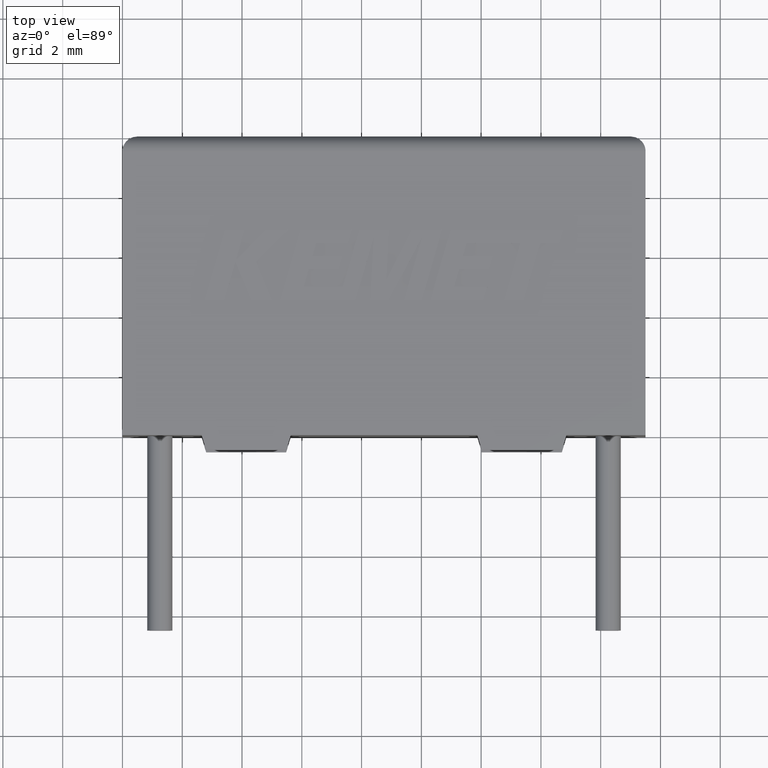
[diagram: clean part render]
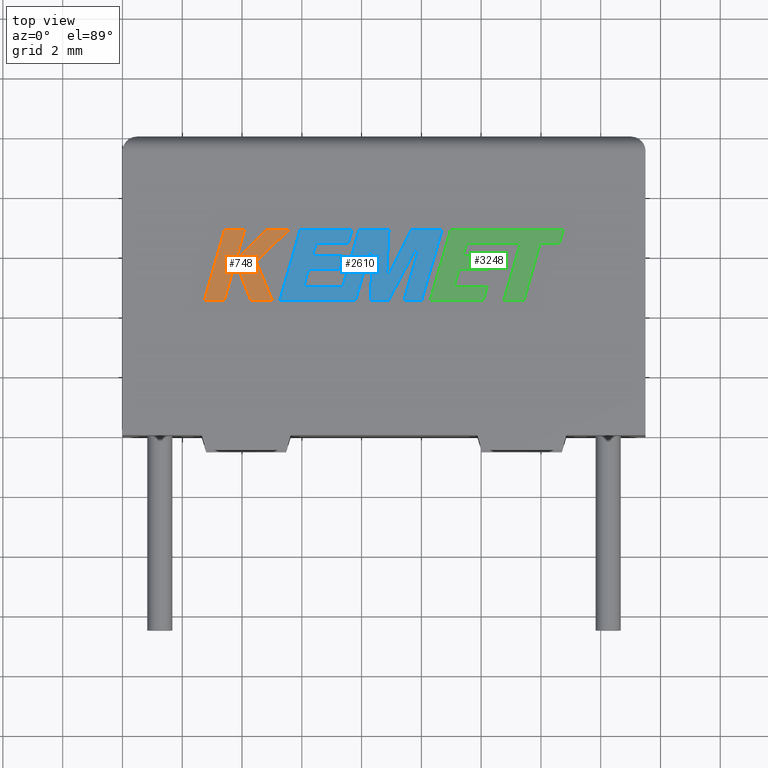
[diagram: same view with three faces highlighted in distinct colors, each labeled with its STEP entity id]
A machine part, top view with three faces highlighted in distinct colors.
Their STEP definitions:

[orange] entity #748 — the highlighted planar face has unit normal (0, 0, -1).
#26 = DIRECTION ( 'NONE',  ( -0.7059037656364501900, -0.7083077534943970100, -0.0000000000000000000 ) ) ;
#35 = CARTESIAN_POINT ( 'NONE',  ( 3.799861121717425000, 5.872117262448632000, 4.504999999999999900 ) ) ;
#83 = LINE ( 'NONE', #2499, #2196 ) ;
#191 = ORIENTED_EDGE ( 'NONE', *, *, #380, .T. ) ;
#361 = EDGE_CURVE ( 'NONE', #2717, #2642, #83, .T. ) ;
#374 = VERTEX_POINT ( 'NONE', #950 ) ;
#380 = EDGE_CURVE ( 'NONE', #374, #1116, #1843, .T. ) ;
#415 = EDGE_CURVE ( 'NONE', #831, #1919, #2115, .T. ) ;
#423 = ORIENTED_EDGE ( 'NONE', *, *, #2266, .T. ) ;
#444 = DIRECTION ( 'NONE',  ( -0.2762033010252004100, -0.9610992334315862100, -0.0000000000000000000 ) ) ;
#516 = CARTESIAN_POINT ( 'NONE',  ( 5.573594794093049000, 6.875176084403357800, 4.504999999999999900 ) ) ;
#522 = VERTEX_POINT ( 'NONE', #1143 ) ;
#542 = ORIENTED_EDGE ( 'NONE', *, *, #2493, .T. ) ;
#613 = LINE ( 'NONE', #2224, #1131 ) ;
#687 = LINE ( 'NONE', #2173, #2333 ) ;
#733 = DIRECTION ( 'NONE',  ( 0.3725077383644744800, -0.9280290862136727500, 0.0000000000000000000 ) ) ;
#744 = EDGE_LOOP ( 'NONE', ( #1003, #1384, #1777, #2006, #1646, #2834, #1976, #423, #542, #191, #2409 ) ) ;
#748 = ADVANCED_FACE ( 'NONE', ( #2150 ), #2434, .F. ) ;
#831 = VERTEX_POINT ( 'NONE', #2471 ) ;
#834 = DIRECTION ( 'NONE',  ( 1.000000000000000000, -1.089306025555442500E-013, 0.0000000000000000000 ) ) ;
#903 = VERTEX_POINT ( 'NONE', #1214 ) ;
#931 = LINE ( 'NONE', #2487, #3048 ) ;
#950 = CARTESIAN_POINT ( 'NONE',  ( 3.799861121717425000, 5.872117262448632000, 4.504999999999999900 ) ) ;
#994 = EDGE_CURVE ( 'NONE', #3115, #1194, #1173, .T. ) ;
#1003 = ORIENTED_EDGE ( 'NONE', *, *, #2249, .T. ) ;
#1116 = VERTEX_POINT ( 'NONE', #2362 ) ;
#1131 = VECTOR ( 'NONE', #2203, 1000.000000000000000 ) ;
#1143 = CARTESIAN_POINT ( 'NONE',  ( 4.799515574290495600, 6.875176084403357800, 4.504999999999999900 ) ) ;
#1173 = LINE ( 'NONE', #2317, #2068 ) ;
#1194 = VERTEX_POINT ( 'NONE', #3149 ) ;
#1214 = CARTESIAN_POINT ( 'NONE',  ( 3.417641984455954700, 6.875176084403357800, 4.504999999999999900 ) ) ;
#1363 = LINE ( 'NONE', #2186, #2470 ) ;
#1384 = ORIENTED_EDGE ( 'NONE', *, *, #994, .T. ) ;
#1442 = VECTOR ( 'NONE', #1601, 1000.000000000000200 ) ;
#1453 = DIRECTION ( 'NONE',  ( 0.0000000000000000000, 0.0000000000000000000, -1.000000000000000000 ) ) ;
#1462 = CARTESIAN_POINT ( 'NONE',  ( 4.289232068683158900, 4.522999999999926900, 4.504999999999999900 ) ) ;
#1601 = DIRECTION ( 'NONE',  ( -0.3829140317376951200, 0.9237839814038687500, 0.0000000000000000000 ) ) ;
#1612 = EDGE_CURVE ( 'NONE', #2328, #2717, #1363, .T. ) ;
#1638 = EDGE_CURVE ( 'NONE', #2642, #831, #1868, .T. ) ;
#1646 = ORIENTED_EDGE ( 'NONE', *, *, #361, .T. ) ;
#1648 = VECTOR ( 'NONE', #1711, 1000.000000000000100 ) ;
#1711 = DIRECTION ( 'NONE',  ( 0.2755520632520599400, 0.9612861490927312500, 0.0000000000000000000 ) ) ;
#1777 = ORIENTED_EDGE ( 'NONE', *, *, #2632, .T. ) ;
#1784 = VECTOR ( 'NONE', #2797, 1000.000000000000000 ) ;
#1798 = CARTESIAN_POINT ( 'NONE',  ( 5.573594794093049000, 6.875176084403357800, 4.504999999999999900 ) ) ;
#1843 = LINE ( 'NONE', #3235, #1648 ) ;
#1868 = LINE ( 'NONE', #2336, #1442 ) ;
#1919 = VERTEX_POINT ( 'NONE', #1798 ) ;
#1976 = ORIENTED_EDGE ( 'NONE', *, *, #415, .T. ) ;
#2006 = ORIENTED_EDGE ( 'NONE', *, *, #1612, .T. ) ;
#2068 = VECTOR ( 'NONE', #834, 1000.000000000000000 ) ;
#2115 = LINE ( 'NONE', #516, #2718 ) ;
#2150 = FACE_OUTER_BOUND ( 'NONE', #744, .T. ) ;
#2160 = DIRECTION ( 'NONE',  ( 0.2755265765475173300, 0.9612934544747535600, 0.0000000000000000000 ) ) ;
#2173 = CARTESIAN_POINT ( 'NONE',  ( 3.776581240866744100, 5.800167774752717200, 4.504999999999999900 ) ) ;
#2186 = CARTESIAN_POINT ( 'NONE',  ( 4.289232068683158900, 4.522999999999926900, 4.504999999999999900 ) ) ;
#2196 = VECTOR ( 'NONE', #2746, 1000.000000000000000 ) ;
#2203 = DIRECTION ( 'NONE',  ( -1.000000000000000000, -0.0000000000000000000, -0.0000000000000000000 ) ) ;
#2224 = CARTESIAN_POINT ( 'NONE',  ( 4.799515574290495600, 6.875176084403357800, 4.504999999999999900 ) ) ;
#2249 = EDGE_CURVE ( 'NONE', #903, #3115, #931, .T. ) ;
#2266 = EDGE_CURVE ( 'NONE', #1919, #522, #613, .T. ) ;
#2317 = CARTESIAN_POINT ( 'NONE',  ( 3.410518554164356800, 4.522999999999926900, 4.504999999999999900 ) ) ;
#2328 = VERTEX_POINT ( 'NONE', #2962 ) ;
#2333 = VECTOR ( 'NONE', #2160, 1000.000000000000100 ) ;
#2336 = CARTESIAN_POINT ( 'NONE',  ( 4.475528316718973400, 5.800167774752745600, 4.504999999999999900 ) ) ;
#2362 = CARTESIAN_POINT ( 'NONE',  ( 4.087387295077634900, 6.875176084403357800, 4.504999999999999900 ) ) ;
#2409 = ORIENTED_EDGE ( 'NONE', *, *, #2423, .T. ) ;
#2423 = EDGE_CURVE ( 'NONE', #1116, #903, #2970, .T. ) ;
#2434 = PLANE ( 'NONE',  #2685 ) ;
#2470 = VECTOR ( 'NONE', #733, 999.9999999999998900 ) ;
#2471 = CARTESIAN_POINT ( 'NONE',  ( 4.475528316718973400, 5.800167774752745600, 4.504999999999999900 ) ) ;
#2487 = CARTESIAN_POINT ( 'NONE',  ( 2.741667249999999400, 4.522999999999999700, 4.504999999999999900 ) ) ;
#2493 = EDGE_CURVE ( 'NONE', #522, #374, #3169, .T. ) ;
#2499 = CARTESIAN_POINT ( 'NONE',  ( 5.004922062097479700, 4.522999999999926900, 4.504999999999999900 ) ) ;
#2508 = CARTESIAN_POINT ( 'NONE',  ( 3.417641984455954700, 6.875176084403357800, 4.504999999999999900 ) ) ;
#2632 = EDGE_CURVE ( 'NONE', #1194, #2328, #687, .T. ) ;
#2642 = VERTEX_POINT ( 'NONE', #2942 ) ;
#2659 = CARTESIAN_POINT ( 'NONE',  ( 2.741667249999999400, 4.522999999999999700, 4.504999999999999900 ) ) ;
#2685 = AXIS2_PLACEMENT_3D ( 'NONE', #3193, #1453, #3211 ) ;
#2717 = VERTEX_POINT ( 'NONE', #1462 ) ;
#2718 = VECTOR ( 'NONE', #2784, 1000.000000000000000 ) ;
#2746 = DIRECTION ( 'NONE',  ( 1.000000000000000000, 0.0000000000000000000, 0.0000000000000000000 ) ) ;
#2784 = DIRECTION ( 'NONE',  ( 0.7145695586381817200, 0.6995643972270416700, 0.0000000000000000000 ) ) ;
#2797 = DIRECTION ( 'NONE',  ( -1.000000000000000000, -0.0000000000000000000, -0.0000000000000000000 ) ) ;
#2834 = ORIENTED_EDGE ( 'NONE', *, *, #1638, .T. ) ;
#2892 = VECTOR ( 'NONE', #26, 1000.000000000000100 ) ;
#2942 = CARTESIAN_POINT ( 'NONE',  ( 5.004922062097479700, 4.522999999999926900, 4.504999999999999900 ) ) ;
#2962 = CARTESIAN_POINT ( 'NONE',  ( 3.776581240866744100, 5.800167774752717200, 4.504999999999999900 ) ) ;
#2970 = LINE ( 'NONE', #2508, #1784 ) ;
#3048 = VECTOR ( 'NONE', #444, 1000.000000000000100 ) ;
#3115 = VERTEX_POINT ( 'NONE', #2659 ) ;
#3149 = CARTESIAN_POINT ( 'NONE',  ( 3.410518554164356800, 4.522999999999926900, 4.504999999999999900 ) ) ;
#3169 = LINE ( 'NONE', #35, #2892 ) ;
#3193 = CARTESIAN_POINT ( 'NONE',  ( 0.07943521965645371200, -8.529055050973587600, 4.504999999999999900 ) ) ;
#3211 = DIRECTION ( 'NONE',  ( -1.000000000000000000, 0.0000000000000000000, 0.0000000000000000000 ) ) ;
#3235 = CARTESIAN_POINT ( 'NONE',  ( 4.087387295077634900, 6.875176084403357800, 4.504999999999999900 ) ) ;

[blue] entity #2610 — the highlighted planar face has unit normal (0, 0, -1).
#16 = VERTEX_POINT ( 'NONE', #577 ) ;
#24 = EDGE_CURVE ( 'NONE', #2454, #591, #1383, .T. ) ;
#29 = CARTESIAN_POINT ( 'NONE',  ( 5.267348260593836400, 4.522999999999925100, 4.504999999999999900 ) ) ;
#46 = LINE ( 'NONE', #1910, #3069 ) ;
#87 = LINE ( 'NONE', #1274, #3073 ) ;
#91 = EDGE_CURVE ( 'NONE', #2383, #2452, #87, .T. ) ;
#110 = EDGE_CURVE ( 'NONE', #2282, #172, #1734, .T. ) ;
#124 = CARTESIAN_POINT ( 'NONE',  ( 10.69286888281140300, 6.875176084403357800, 4.504999999999999900 ) ) ;
#170 = EDGE_CURVE ( 'NONE', #271, #2383, #873, .T. ) ;
#172 = VERTEX_POINT ( 'NONE', #3097 ) ;
#210 = VERTEX_POINT ( 'NONE', #382 ) ;
#213 = CARTESIAN_POINT ( 'NONE',  ( 7.681918713741795900, 6.875176084403357800, 4.504999999999999900 ) ) ;
#215 = EDGE_CURVE ( 'NONE', #16, #1849, #1380, .T. ) ;
#239 = ORIENTED_EDGE ( 'NONE', *, *, #486, .T. ) ;
#246 = CARTESIAN_POINT ( 'NONE',  ( 7.801364874262980600, 4.522999999999926900, 4.504999999999999900 ) ) ;
#257 = DIRECTION ( 'NONE',  ( 0.2759782365590801000, 0.9611638845408936300, 0.0000000000000000000 ) ) ;
#264 = DIRECTION ( 'NONE',  ( 0.2732148821745925000, 0.9619530280415585800, 0.0000000000000000000 ) ) ;
#271 = VERTEX_POINT ( 'NONE', #2683 ) ;
#281 = VERTEX_POINT ( 'NONE', #1144 ) ;
#290 = EDGE_CURVE ( 'NONE', #843, #2908, #1065, .T. ) ;
#301 = CARTESIAN_POINT ( 'NONE',  ( 6.231714566706590300, 5.555110394430525600, 4.504999999999999900 ) ) ;
#310 = EDGE_CURVE ( 'NONE', #1375, #2454, #46, .T. ) ;
#328 = DIRECTION ( 'NONE',  ( -1.000000000000000000, 0.0000000000000000000, 0.0000000000000000000 ) ) ;
#333 = VECTOR ( 'NONE', #264, 1000.000000000000100 ) ;
#343 = LINE ( 'NONE', #988, #2705 ) ;
#347 = CARTESIAN_POINT ( 'NONE',  ( 10.02312357218991500, 6.627164912981995400, 4.504999999999999900 ) ) ;
#370 = ORIENTED_EDGE ( 'NONE', *, *, #1403, .T. ) ;
#382 = CARTESIAN_POINT ( 'NONE',  ( 6.355773792693551800, 5.989947064589872000, 4.504999999999999900 ) ) ;
#424 = VECTOR ( 'NONE', #2631, 1000.000000000000000 ) ;
#425 = LINE ( 'NONE', #1093, #2346 ) ;
#468 = EDGE_CURVE ( 'NONE', #281, #210, #1109, .T. ) ;
#474 = ORIENTED_EDGE ( 'NONE', *, *, #1663, .T. ) ;
#486 = EDGE_CURVE ( 'NONE', #1172, #2244, #2914, .T. ) ;
#543 = VECTOR ( 'NONE', #2330, 1000.000000000000200 ) ;
#556 = VERTEX_POINT ( 'NONE', #1378 ) ;
#558 = DIRECTION ( 'NONE',  ( 1.000000000000000000, 0.0000000000000000000, 0.0000000000000000000 ) ) ;
#577 = CARTESIAN_POINT ( 'NONE',  ( 9.661220449992331500, 6.875176084403357800, 4.504999999999999900 ) ) ;
#591 = VERTEX_POINT ( 'NONE', #124 ) ;
#610 = EDGE_CURVE ( 'NONE', #1056, #2482, #2833, .T. ) ;
#630 = CARTESIAN_POINT ( 'NONE',  ( 7.916534120704699100, 6.875176084403357800, 4.504999999999999900 ) ) ;
#656 = AXIS2_PLACEMENT_3D ( 'NONE', #2930, #2182, #2406 ) ;
#664 = LINE ( 'NONE', #890, #424 ) ;
#707 = VECTOR ( 'NONE', #328, 1000.000000000000000 ) ;
#742 = ORIENTED_EDGE ( 'NONE', *, *, #110, .T. ) ;
#782 = CARTESIAN_POINT ( 'NONE',  ( 10.02312357218991500, 6.627164912981995400, 4.504999999999999900 ) ) ;
#784 = DIRECTION ( 'NONE',  ( -1.000000000000000000, 0.0000000000000000000, 0.0000000000000000000 ) ) ;
#843 = VERTEX_POINT ( 'NONE', #1991 ) ;
#855 = DIRECTION ( 'NONE',  ( -0.4443210308329059200, -0.8958676361827030400, 0.0000000000000000000 ) ) ;
#873 = LINE ( 'NONE', #2890, #1609 ) ;
#884 = DIRECTION ( 'NONE',  ( -0.2762517575166160700, -0.9610853065513907900, 0.0000000000000000000 ) ) ;
#890 = CARTESIAN_POINT ( 'NONE',  ( 8.918242698049985200, 6.875176084403357800, 4.504999999999999900 ) ) ;
#898 = ORIENTED_EDGE ( 'NONE', *, *, #1655, .T. ) ;
#942 = LINE ( 'NONE', #1348, #1365 ) ;
#976 = EDGE_CURVE ( 'NONE', #2958, #1375, #1996, .T. ) ;
#981 = ORIENTED_EDGE ( 'NONE', *, *, #215, .T. ) ;
#988 = CARTESIAN_POINT ( 'NONE',  ( 6.065143635469668800, 4.970502926892681500, 4.504999999999999900 ) ) ;
#1013 = CARTESIAN_POINT ( 'NONE',  ( 9.418876612286860400, 4.522999999999926900, 4.504999999999999900 ) ) ;
#1019 = LINE ( 'NONE', #2582, #3251 ) ;
#1028 = CARTESIAN_POINT ( 'NONE',  ( 10.01660091485718100, 4.522999999999926900, 4.504999999999999900 ) ) ;
#1056 = VERTEX_POINT ( 'NONE', #2302 ) ;
#1065 = LINE ( 'NONE', #3163, #1457 ) ;
#1066 = ORIENTED_EDGE ( 'NONE', *, *, #310, .T. ) ;
#1072 = ORIENTED_EDGE ( 'NONE', *, *, #91, .T. ) ;
#1079 = CARTESIAN_POINT ( 'NONE',  ( 10.01660091485718100, 4.522999999999926900, 4.504999999999999900 ) ) ;
#1093 = CARTESIAN_POINT ( 'NONE',  ( 10.69286888281140300, 6.875176084403357800, 4.504999999999999900 ) ) ;
#1103 = VECTOR ( 'NONE', #884, 1000.000000000000000 ) ;
#1109 = LINE ( 'NONE', #1589, #707 ) ;
#1144 = CARTESIAN_POINT ( 'NONE',  ( 7.365355271991178100, 5.989947064589872000, 4.504999999999999900 ) ) ;
#1161 = EDGE_CURVE ( 'NONE', #2647, #1056, #664, .T. ) ;
#1162 = DIRECTION ( 'NONE',  ( -0.2765379750249959400, -0.9610029908221278100, 0.0000000000000000000 ) ) ;
#1167 = PLANE ( 'NONE',  #656 ) ;
#1172 = VERTEX_POINT ( 'NONE', #1376 ) ;
#1181 = CARTESIAN_POINT ( 'NONE',  ( 8.918242698049985200, 6.875176084403357800, 4.504999999999999900 ) ) ;
#1196 = EDGE_CURVE ( 'NONE', #2452, #2958, #1680, .T. ) ;
#1237 = FACE_OUTER_BOUND ( 'NONE', #1422, .T. ) ;
#1251 = DIRECTION ( 'NONE',  ( 0.2793947940878287500, 0.9601763114327596100, 0.0000000000000000000 ) ) ;
#1274 = CARTESIAN_POINT ( 'NONE',  ( 8.285257363114753900, 4.522999999999926900, 4.504999999999999900 ) ) ;
#1283 = ORIENTED_EDGE ( 'NONE', *, *, #610, .T. ) ;
#1294 = EDGE_CURVE ( 'NONE', #556, #271, #2146, .T. ) ;
#1300 = VECTOR ( 'NONE', #2546, 1000.000000000000100 ) ;
#1304 = DIRECTION ( 'NONE',  ( 0.05375259206908267900, 0.9985542843760947300, 0.0000000000000000000 ) ) ;
#1323 = VERTEX_POINT ( 'NONE', #1989 ) ;
#1348 = CARTESIAN_POINT ( 'NONE',  ( 7.241153005273329100, 5.555110394430525600, 4.504999999999999900 ) ) ;
#1365 = VECTOR ( 'NONE', #3126, 1000.000000000000100 ) ;
#1367 = DIRECTION ( 'NONE',  ( -0.05596501978068205200, -0.9984327301130245800, 0.0000000000000000000 ) ) ;
#1370 = VECTOR ( 'NONE', #257, 1000.000000000000100 ) ;
#1375 = VERTEX_POINT ( 'NONE', #1013 ) ;
#1376 = CARTESIAN_POINT ( 'NONE',  ( 6.483080043273763400, 6.427451444381633300, 4.504999999999999900 ) ) ;
#1378 = CARTESIAN_POINT ( 'NONE',  ( 7.801364874262980600, 4.522999999999926900, 4.504999999999999900 ) ) ;
#1380 = LINE ( 'NONE', #1836, #1653 ) ;
#1383 = LINE ( 'NONE', #1079, #1300 ) ;
#1397 = DIRECTION ( 'NONE',  ( 0.4668459304955211400, 0.8843386665637611400, 0.0000000000000000000 ) ) ;
#1403 = EDGE_CURVE ( 'NONE', #1849, #2647, #2790, .T. ) ;
#1422 = EDGE_LOOP ( 'NONE', ( #2950, #981, #370, #1501, #1283, #3214, #1881, #742, #3078, #1934, #3157, #239, #2188, #898, #2883, #474, #2530, #2319, #1072, #2807, #1869, #1066, #2156 ) ) ;
#1426 = EDGE_CURVE ( 'NONE', #2482, #1323, #2108, .T. ) ;
#1451 = VECTOR ( 'NONE', #2567, 1000.000000000000000 ) ;
#1457 = VECTOR ( 'NONE', #1162, 1000.000000000000000 ) ;
#1501 = ORIENTED_EDGE ( 'NONE', *, *, #1161, .T. ) ;
#1531 = EDGE_CURVE ( 'NONE', #591, #16, #425, .T. ) ;
#1547 = EDGE_CURVE ( 'NONE', #172, #281, #942, .T. ) ;
#1589 = CARTESIAN_POINT ( 'NONE',  ( 7.365355271991178100, 5.989947064589872000, 4.504999999999999900 ) ) ;
#1609 = VECTOR ( 'NONE', #1367, 1000.000000000000200 ) ;
#1611 = CARTESIAN_POINT ( 'NONE',  ( 8.912326471646855100, 4.522999999999926900, 4.504999999999999900 ) ) ;
#1653 = VECTOR ( 'NONE', #855, 1000.000000000000000 ) ;
#1655 = EDGE_CURVE ( 'NONE', #2267, #843, #1677, .T. ) ;
#1663 = EDGE_CURVE ( 'NONE', #2908, #556, #1019, .T. ) ;
#1677 = LINE ( 'NONE', #2082, #1951 ) ;
#1680 = LINE ( 'NONE', #1611, #1686 ) ;
#1686 = VECTOR ( 'NONE', #1397, 1000.000000000000200 ) ;
#1734 = LINE ( 'NONE', #301, #1882 ) ;
#1786 = EDGE_CURVE ( 'NONE', #1323, #2282, #343, .T. ) ;
#1836 = CARTESIAN_POINT ( 'NONE',  ( 9.661220449992331500, 6.875176084403357800, 4.504999999999999900 ) ) ;
#1849 = VERTEX_POINT ( 'NONE', #3080 ) ;
#1869 = ORIENTED_EDGE ( 'NONE', *, *, #976, .T. ) ;
#1881 = ORIENTED_EDGE ( 'NONE', *, *, #1786, .T. ) ;
#1882 = VECTOR ( 'NONE', #558, 1000.000000000000000 ) ;
#1910 = CARTESIAN_POINT ( 'NONE',  ( 9.418876612286860400, 4.522999999999926900, 4.504999999999999900 ) ) ;
#1934 = ORIENTED_EDGE ( 'NONE', *, *, #468, .T. ) ;
#1951 = VECTOR ( 'NONE', #2863, 1000.000000000000000 ) ;
#1978 = VECTOR ( 'NONE', #1251, 1000.000000000000000 ) ;
#1989 = CARTESIAN_POINT ( 'NONE',  ( 6.065143635469668800, 4.970502926892681500, 4.504999999999999900 ) ) ;
#1991 = CARTESIAN_POINT ( 'NONE',  ( 5.944209849470560400, 6.875176084403357800, 4.504999999999999900 ) ) ;
#1996 = LINE ( 'NONE', #347, #543 ) ;
#2031 = CARTESIAN_POINT ( 'NONE',  ( 6.355773792693551800, 5.989947064589872000, 4.504999999999999900 ) ) ;
#2082 = CARTESIAN_POINT ( 'NONE',  ( 7.681918713741795900, 6.875176084403357800, 4.504999999999999900 ) ) ;
#2108 = LINE ( 'NONE', #2541, #2549 ) ;
#2146 = LINE ( 'NONE', #246, #1370 ) ;
#2156 = ORIENTED_EDGE ( 'NONE', *, *, #24, .T. ) ;
#2182 = DIRECTION ( 'NONE',  ( 0.0000000000000000000, 0.0000000000000000000, -1.000000000000000000 ) ) ;
#2188 = ORIENTED_EDGE ( 'NONE', *, *, #2885, .T. ) ;
#2244 = VERTEX_POINT ( 'NONE', #2426 ) ;
#2267 = VERTEX_POINT ( 'NONE', #213 ) ;
#2276 = CARTESIAN_POINT ( 'NONE',  ( 8.285257363114753900, 4.522999999999926900, 4.504999999999999900 ) ) ;
#2282 = VERTEX_POINT ( 'NONE', #2464 ) ;
#2302 = CARTESIAN_POINT ( 'NONE',  ( 7.916534120704699100, 6.875176084403357800, 4.504999999999999900 ) ) ;
#2312 = CARTESIAN_POINT ( 'NONE',  ( 8.827784731893460800, 5.194751267950637800, 4.504999999999999900 ) ) ;
#2319 = ORIENTED_EDGE ( 'NONE', *, *, #170, .T. ) ;
#2330 = DIRECTION ( 'NONE',  ( -0.2760118818968562100, -0.9611542233438689100, 0.0000000000000000000 ) ) ;
#2346 = VECTOR ( 'NONE', #2853, 1000.000000000000000 ) ;
#2348 = DIRECTION ( 'NONE',  ( 1.000000000000000000, 0.0000000000000000000, 0.0000000000000000000 ) ) ;
#2383 = VERTEX_POINT ( 'NONE', #2276 ) ;
#2406 = DIRECTION ( 'NONE',  ( -1.000000000000000000, 0.0000000000000000000, 0.0000000000000000000 ) ) ;
#2426 = CARTESIAN_POINT ( 'NONE',  ( 7.554755503892309300, 6.427451444381633300, 4.504999999999999900 ) ) ;
#2452 = VERTEX_POINT ( 'NONE', #2532 ) ;
#2454 = VERTEX_POINT ( 'NONE', #1028 ) ;
#2464 = CARTESIAN_POINT ( 'NONE',  ( 6.231714566706590300, 5.555110394430525600, 4.504999999999999900 ) ) ;
#2482 = VERTEX_POINT ( 'NONE', #3043 ) ;
#2501 = LINE ( 'NONE', #3016, #333 ) ;
#2530 = ORIENTED_EDGE ( 'NONE', *, *, #1294, .T. ) ;
#2532 = CARTESIAN_POINT ( 'NONE',  ( 8.912326471646855100, 4.522999999999926900, 4.504999999999999900 ) ) ;
#2541 = CARTESIAN_POINT ( 'NONE',  ( 7.369060026916844000, 4.970502926892681500, 4.504999999999999900 ) ) ;
#2546 = DIRECTION ( 'NONE',  ( 0.2763139702539115800, 0.9610674221107072800, 0.0000000000000000000 ) ) ;
#2549 = VECTOR ( 'NONE', #784, 1000.000000000000000 ) ;
#2567 = DIRECTION ( 'NONE',  ( 1.000000000000000000, 0.0000000000000000000, 0.0000000000000000000 ) ) ;
#2576 = CARTESIAN_POINT ( 'NONE',  ( 6.483080043273763400, 6.427451444381633300, 4.504999999999999900 ) ) ;
#2582 = CARTESIAN_POINT ( 'NONE',  ( 5.267348260593836400, 4.522999999999925100, 4.504999999999999900 ) ) ;
#2610 = ADVANCED_FACE ( 'NONE', ( #1237 ), #1167, .F. ) ;
#2631 = DIRECTION ( 'NONE',  ( -1.000000000000000000, 0.0000000000000000000, 0.0000000000000000000 ) ) ;
#2647 = VERTEX_POINT ( 'NONE', #1181 ) ;
#2683 = CARTESIAN_POINT ( 'NONE',  ( 8.402636586962369600, 6.617080541452265800, 4.504999999999999900 ) ) ;
#2705 = VECTOR ( 'NONE', #2742, 1000.000000000000100 ) ;
#2742 = DIRECTION ( 'NONE',  ( 0.2740217765954066100, 0.9617234872620595800, 0.0000000000000000000 ) ) ;
#2790 = LINE ( 'NONE', #2312, #2869 ) ;
#2807 = ORIENTED_EDGE ( 'NONE', *, *, #1196, .T. ) ;
#2833 = LINE ( 'NONE', #630, #1103 ) ;
#2853 = DIRECTION ( 'NONE',  ( -1.000000000000000000, 0.0000000000000000000, 0.0000000000000000000 ) ) ;
#2863 = DIRECTION ( 'NONE',  ( -1.000000000000000000, 0.0000000000000000000, 0.0000000000000000000 ) ) ;
#2869 = VECTOR ( 'NONE', #1304, 1000.000000000000100 ) ;
#2883 = ORIENTED_EDGE ( 'NONE', *, *, #290, .T. ) ;
#2885 = EDGE_CURVE ( 'NONE', #2244, #2267, #2501, .T. ) ;
#2890 = CARTESIAN_POINT ( 'NONE',  ( 8.402636586962369600, 6.617080541452265800, 4.504999999999999900 ) ) ;
#2908 = VERTEX_POINT ( 'NONE', #29 ) ;
#2914 = LINE ( 'NONE', #2576, #1451 ) ;
#2923 = DIRECTION ( 'NONE',  ( 1.000000000000000000, 0.0000000000000000000, 0.0000000000000000000 ) ) ;
#2930 = CARTESIAN_POINT ( 'NONE',  ( 0.07943521965645371200, -8.529055050973587600, 4.504999999999998100 ) ) ;
#2950 = ORIENTED_EDGE ( 'NONE', *, *, #1531, .T. ) ;
#2951 = EDGE_CURVE ( 'NONE', #210, #1172, #3128, .T. ) ;
#2958 = VERTEX_POINT ( 'NONE', #782 ) ;
#3016 = CARTESIAN_POINT ( 'NONE',  ( 7.554755503892309300, 6.427451444381633300, 4.504999999999999900 ) ) ;
#3043 = CARTESIAN_POINT ( 'NONE',  ( 7.369060026916844000, 4.970502926892681500, 4.504999999999999900 ) ) ;
#3062 = DIRECTION ( 'NONE',  ( 1.000000000000000000, 0.0000000000000000000, 0.0000000000000000000 ) ) ;
#3069 = VECTOR ( 'NONE', #2923, 1000.000000000000000 ) ;
#3073 = VECTOR ( 'NONE', #3062, 1000.000000000000000 ) ;
#3078 = ORIENTED_EDGE ( 'NONE', *, *, #1547, .T. ) ;
#3080 = CARTESIAN_POINT ( 'NONE',  ( 8.827784731893460800, 5.194751267950637800, 4.504999999999999900 ) ) ;
#3097 = CARTESIAN_POINT ( 'NONE',  ( 7.241153005273329100, 5.555110394430525600, 4.504999999999999900 ) ) ;
#3126 = DIRECTION ( 'NONE',  ( 0.2746459304916904500, 0.9615454294334477800, 0.0000000000000000000 ) ) ;
#3128 = LINE ( 'NONE', #2031, #1978 ) ;
#3157 = ORIENTED_EDGE ( 'NONE', *, *, #2951, .T. ) ;
#3163 = CARTESIAN_POINT ( 'NONE',  ( 5.944209849470560400, 6.875176084403357800, 4.504999999999999900 ) ) ;
#3214 = ORIENTED_EDGE ( 'NONE', *, *, #1426, .T. ) ;
#3251 = VECTOR ( 'NONE', #2348, 1000.000000000000000 ) ;

[green] entity #3248 — the highlighted planar face has unit normal (0, 0, 1).
#48 = CARTESIAN_POINT ( 'NONE',  ( 13.30781079003585900, 6.421014611483802700, 4.504999999999999900 ) ) ;
#77 = EDGE_LOOP ( 'NONE', ( #2483, #584, #2391, #3100, #519, #2912, #88, #2354, #987, #1329, #309, #3185, #2407, #864, #892, #1995, #2405 ) ) ;
#88 = ORIENTED_EDGE ( 'NONE', *, *, #137, .T. ) ;
#123 = VERTEX_POINT ( 'NONE', #2099 ) ;
#137 = EDGE_CURVE ( 'NONE', #945, #2676, #2318, .T. ) ;
#159 = CARTESIAN_POINT ( 'NONE',  ( 12.39694171919180700, 5.989868392184078500, 4.504999999999999900 ) ) ;
#166 = PLANE ( 'NONE',  #1250 ) ;
#204 = VERTEX_POINT ( 'NONE', #1617 ) ;
#256 = EDGE_CURVE ( 'NONE', #561, #317, #518, .T. ) ;
#273 = EDGE_CURVE ( 'NONE', #1956, #285, #2558, .T. ) ;
#285 = VERTEX_POINT ( 'NONE', #2166 ) ;
#309 = ORIENTED_EDGE ( 'NONE', *, *, #2614, .T. ) ;
#311 = CARTESIAN_POINT ( 'NONE',  ( 12.59272156769273100, 6.424340308479400200, 4.504999999999999900 ) ) ;
#317 = VERTEX_POINT ( 'NONE', #439 ) ;
#339 = DIRECTION ( 'NONE',  ( 0.2762033010287925900, 0.9610992334305538100, 0.0000000000000000000 ) ) ;
#345 = VERTEX_POINT ( 'NONE', #2625 ) ;
#388 = LINE ( 'NONE', #1906, #623 ) ;
#402 = CARTESIAN_POINT ( 'NONE',  ( 12.20382242828717200, 4.970588751325253800, 4.504999999999999900 ) ) ;
#412 = CARTESIAN_POINT ( 'NONE',  ( 10.97624687685624600, 6.875176084403359600, 4.504999999999999900 ) ) ;
#414 = DIRECTION ( 'NONE',  ( 0.0000000000000000000, 0.0000000000000000000, 1.000000000000000000 ) ) ;
#419 = DIRECTION ( 'NONE',  ( -1.000000000000000000, 0.0000000000000000000, 0.0000000000000000000 ) ) ;
#421 = CARTESIAN_POINT ( 'NONE',  ( 10.29967852147772700, 4.522999999999926900, 4.504999999999999900 ) ) ;
#439 = CARTESIAN_POINT ( 'NONE',  ( 12.39694171919180700, 5.989868392184078500, 4.504999999999999900 ) ) ;
#447 = EDGE_CURVE ( 'NONE', #2676, #487, #2077, .T. ) ;
#475 = LINE ( 'NONE', #3085, #1285 ) ;
#487 = VERTEX_POINT ( 'NONE', #3096 ) ;
#497 = VECTOR ( 'NONE', #2418, 1000.000000000000000 ) ;
#518 = LINE ( 'NONE', #1411, #2200 ) ;
#519 = ORIENTED_EDGE ( 'NONE', *, *, #1094, .T. ) ;
#535 = LINE ( 'NONE', #2547, #1585 ) ;
#561 = VERTEX_POINT ( 'NONE', #2634 ) ;
#584 = ORIENTED_EDGE ( 'NONE', *, *, #2371, .T. ) ;
#622 = VECTOR ( 'NONE', #1587, 1000.000000000000000 ) ;
#623 = VECTOR ( 'NONE', #419, 1000.000000000000000 ) ;
#658 = CARTESIAN_POINT ( 'NONE',  ( 12.07681656324516200, 4.522999999999926900, 4.504999999999999900 ) ) ;
#679 = CARTESIAN_POINT ( 'NONE',  ( 13.43215609748173600, 4.522999999999926900, 4.504999999999999900 ) ) ;
#701 = CARTESIAN_POINT ( 'NONE',  ( 0.07943521965645371200, -8.529055050973587600, 4.504999999999999900 ) ) ;
#705 = CARTESIAN_POINT ( 'NONE',  ( 14.75223609341944600, 6.875176084403359600, 4.504999999999999900 ) ) ;
#722 = VERTEX_POINT ( 'NONE', #421 ) ;
#739 = LINE ( 'NONE', #48, #2981 ) ;
#757 = VERTEX_POINT ( 'NONE', #402 ) ;
#763 = EDGE_CURVE ( 'NONE', #487, #722, #3026, .T. ) ;
#797 = VERTEX_POINT ( 'NONE', #2736 ) ;
#864 = ORIENTED_EDGE ( 'NONE', *, *, #1016, .T. ) ;
#892 = ORIENTED_EDGE ( 'NONE', *, *, #256, .T. ) ;
#945 = VERTEX_POINT ( 'NONE', #2999 ) ;
#987 = ORIENTED_EDGE ( 'NONE', *, *, #763, .T. ) ;
#1016 = EDGE_CURVE ( 'NONE', #345, #561, #3142, .T. ) ;
#1034 = EDGE_CURVE ( 'NONE', #285, #1081, #475, .T. ) ;
#1045 = VECTOR ( 'NONE', #2906, 1000.000000000000000 ) ;
#1081 = VERTEX_POINT ( 'NONE', #311 ) ;
#1094 = EDGE_CURVE ( 'NONE', #3138, #123, #1797, .T. ) ;
#1157 = DIRECTION ( 'NONE',  ( 1.000000000000000000, 0.0000000000000000000, 0.0000000000000000000 ) ) ;
#1250 = AXIS2_PLACEMENT_3D ( 'NONE', #701, #414, #1157 ) ;
#1258 = EDGE_CURVE ( 'NONE', #757, #3020, #388, .T. ) ;
#1285 = VECTOR ( 'NONE', #2053, 999.9999999999998900 ) ;
#1293 = VECTOR ( 'NONE', #1889, 1000.000000000000100 ) ;
#1320 = CARTESIAN_POINT ( 'NONE',  ( 14.75223609341944600, 6.875176084403359600, 4.504999999999999900 ) ) ;
#1329 = ORIENTED_EDGE ( 'NONE', *, *, #2180, .T. ) ;
#1388 = EDGE_CURVE ( 'NONE', #3020, #345, #3143, .T. ) ;
#1411 = CARTESIAN_POINT ( 'NONE',  ( 12.27273945247669400, 5.555110394425783600, 4.504999999999999900 ) ) ;
#1511 = EDGE_CURVE ( 'NONE', #797, #1839, #739, .T. ) ;
#1550 = DIRECTION ( 'NONE',  ( -0.2763173343569912400, -0.9610664548998924000, 0.0000000000000000000 ) ) ;
#1579 = CARTESIAN_POINT ( 'NONE',  ( 14.62170324627232400, 6.420963484976353700, 4.504999999999999900 ) ) ;
#1585 = VECTOR ( 'NONE', #3013, 1000.000000000000100 ) ;
#1587 = DIRECTION ( 'NONE',  ( 1.000000000000000000, 0.0000000000000000000, 0.0000000000000000000 ) ) ;
#1617 = CARTESIAN_POINT ( 'NONE',  ( 12.07681656324516200, 4.522999999999926900, 4.504999999999999900 ) ) ;
#1797 = LINE ( 'NONE', #2574, #1913 ) ;
#1818 = CARTESIAN_POINT ( 'NONE',  ( 11.38751758469813800, 5.989868392184078500, 4.504999999999999900 ) ) ;
#1839 = VERTEX_POINT ( 'NONE', #3249 ) ;
#1870 = CARTESIAN_POINT ( 'NONE',  ( 13.97769914138729800, 6.421014611477782600, 4.504999999999999900 ) ) ;
#1889 = DIRECTION ( 'NONE',  ( 0.2793947940814911500, 0.9601763114346036900, 0.0000000000000000000 ) ) ;
#1893 = DIRECTION ( 'NONE',  ( 1.000000000000000000, 0.0000000000000000000, 0.0000000000000000000 ) ) ;
#1899 = DIRECTION ( 'NONE',  ( 0.2746918797667246600, 0.9615323037684294600, 0.0000000000000000000 ) ) ;
#1906 = CARTESIAN_POINT ( 'NONE',  ( 12.20382242828717200, 4.970588751325253800, 4.504999999999999900 ) ) ;
#1913 = VECTOR ( 'NONE', #2106, 999.9999999999998900 ) ;
#1917 = CARTESIAN_POINT ( 'NONE',  ( 10.29967852147772700, 4.522999999999926900, 4.504999999999999900 ) ) ;
#1942 = LINE ( 'NONE', #658, #497 ) ;
#1956 = VERTEX_POINT ( 'NONE', #1818 ) ;
#1995 = ORIENTED_EDGE ( 'NONE', *, *, #2609, .T. ) ;
#2041 = VECTOR ( 'NONE', #2054, 1000.000000000000000 ) ;
#2053 = DIRECTION ( 'NONE',  ( 0.9999960426590096500, -0.002813301676023192500, 0.0000000000000000000 ) ) ;
#2054 = DIRECTION ( 'NONE',  ( -1.000000000000000000, 0.0000000000000000000, 0.0000000000000000000 ) ) ;
#2057 = EDGE_CURVE ( 'NONE', #123, #945, #2976, .T. ) ;
#2062 = VECTOR ( 'NONE', #2639, 1000.000000000000100 ) ;
#2077 = LINE ( 'NONE', #1320, #2041 ) ;
#2099 = CARTESIAN_POINT ( 'NONE',  ( 13.97769914138729800, 6.421014611477782600, 4.504999999999999900 ) ) ;
#2106 = DIRECTION ( 'NONE',  ( 0.2762437428917420800, 0.9610876102172795100, 0.0000000000000000000 ) ) ;
#2158 = VECTOR ( 'NONE', #339, 1000.000000000000100 ) ;
#2166 = CARTESIAN_POINT ( 'NONE',  ( 11.51482383527558000, 6.427372771977082300, 4.504999999999999900 ) ) ;
#2180 = EDGE_CURVE ( 'NONE', #722, #204, #3245, .T. ) ;
#2200 = VECTOR ( 'NONE', #1899, 1000.000000000000100 ) ;
#2231 = VECTOR ( 'NONE', #3046, 1000.000000000000100 ) ;
#2256 = VECTOR ( 'NONE', #2956, 1000.000000000000000 ) ;
#2297 = VECTOR ( 'NONE', #1893, 1000.000000000000000 ) ;
#2318 = LINE ( 'NONE', #1579, #2158 ) ;
#2354 = ORIENTED_EDGE ( 'NONE', *, *, #447, .T. ) ;
#2366 = CARTESIAN_POINT ( 'NONE',  ( 11.38751758469813800, 5.989868392184078500, 4.504999999999999900 ) ) ;
#2371 = EDGE_CURVE ( 'NONE', #1081, #797, #535, .T. ) ;
#2391 = ORIENTED_EDGE ( 'NONE', *, *, #1511, .T. ) ;
#2405 = ORIENTED_EDGE ( 'NONE', *, *, #273, .T. ) ;
#2407 = ORIENTED_EDGE ( 'NONE', *, *, #1388, .T. ) ;
#2410 = DIRECTION ( 'NONE',  ( -0.2764273280489772400, -0.9610348236706634000, 0.0000000000000000000 ) ) ;
#2418 = DIRECTION ( 'NONE',  ( 0.2729786930695575800, 0.9620200793798622300, 0.0000000000000000000 ) ) ;
#2483 = ORIENTED_EDGE ( 'NONE', *, *, #1034, .T. ) ;
#2547 = CARTESIAN_POINT ( 'NONE',  ( 12.59272156769273100, 6.424340308479400200, 4.504999999999999900 ) ) ;
#2558 = LINE ( 'NONE', #2366, #1293 ) ;
#2574 = CARTESIAN_POINT ( 'NONE',  ( 13.43215609748173600, 4.522999999999926900, 4.504999999999999900 ) ) ;
#2609 = EDGE_CURVE ( 'NONE', #317, #1956, #2700, .T. ) ;
#2614 = EDGE_CURVE ( 'NONE', #204, #757, #1942, .T. ) ;
#2625 = CARTESIAN_POINT ( 'NONE',  ( 11.26345835871403300, 5.555110394425783600, 4.504999999999999900 ) ) ;
#2634 = CARTESIAN_POINT ( 'NONE',  ( 12.27273945247669400, 5.555110394425783600, 4.504999999999999900 ) ) ;
#2639 = DIRECTION ( 'NONE',  ( 0.9999999968487352000, -7.938847109813095700E-005, 0.0000000000000000000 ) ) ;
#2651 = EDGE_CURVE ( 'NONE', #1839, #3138, #3130, .T. ) ;
#2676 = VERTEX_POINT ( 'NONE', #705 ) ;
#2678 = CARTESIAN_POINT ( 'NONE',  ( 12.76211040132499400, 4.522999999999926900, 4.504999999999999900 ) ) ;
#2700 = LINE ( 'NONE', #159, #1045 ) ;
#2736 = CARTESIAN_POINT ( 'NONE',  ( 13.30781079003585900, 6.421014611483802700, 4.504999999999999900 ) ) ;
#2776 = FACE_OUTER_BOUND ( 'NONE', #77, .T. ) ;
#2864 = CARTESIAN_POINT ( 'NONE',  ( 11.26345835871403300, 5.555110394425783600, 4.504999999999999900 ) ) ;
#2906 = DIRECTION ( 'NONE',  ( -1.000000000000000000, 0.0000000000000000000, 0.0000000000000000000 ) ) ;
#2912 = ORIENTED_EDGE ( 'NONE', *, *, #2057, .T. ) ;
#2953 = VECTOR ( 'NONE', #2410, 1000.000000000000000 ) ;
#2956 = DIRECTION ( 'NONE',  ( 1.000000000000000000, 0.0000000000000000000, 0.0000000000000000000 ) ) ;
#2976 = LINE ( 'NONE', #1870, #2062 ) ;
#2981 = VECTOR ( 'NONE', #1550, 999.9999999999998900 ) ;
#2999 = CARTESIAN_POINT ( 'NONE',  ( 14.62170324627232400, 6.420963484976353700, 4.504999999999999900 ) ) ;
#3008 = CARTESIAN_POINT ( 'NONE',  ( 11.09658704194583100, 4.970588751325253800, 4.504999999999999900 ) ) ;
#3013 = DIRECTION ( 'NONE',  ( 0.9999891854650020400, -0.004650693823678666100, 0.0000000000000000000 ) ) ;
#3020 = VERTEX_POINT ( 'NONE', #3054 ) ;
#3026 = LINE ( 'NONE', #412, #2953 ) ;
#3046 = DIRECTION ( 'NONE',  ( 0.2745159998572696500, 0.9615825319869134600, 0.0000000000000000000 ) ) ;
#3054 = CARTESIAN_POINT ( 'NONE',  ( 11.09658704194583100, 4.970588751325253800, 4.504999999999999900 ) ) ;
#3085 = CARTESIAN_POINT ( 'NONE',  ( 11.51482383527558000, 6.427372771977082300, 4.504999999999999900 ) ) ;
#3096 = CARTESIAN_POINT ( 'NONE',  ( 10.97624687685624600, 6.875176084403359600, 4.504999999999999900 ) ) ;
#3100 = ORIENTED_EDGE ( 'NONE', *, *, #2651, .T. ) ;
#3130 = LINE ( 'NONE', #2678, #2256 ) ;
#3138 = VERTEX_POINT ( 'NONE', #679 ) ;
#3142 = LINE ( 'NONE', #2864, #622 ) ;
#3143 = LINE ( 'NONE', #3008, #2231 ) ;
#3185 = ORIENTED_EDGE ( 'NONE', *, *, #1258, .T. ) ;
#3245 = LINE ( 'NONE', #1917, #2297 ) ;
#3248 = ADVANCED_FACE ( 'NONE', ( #2776 ), #166, .T. ) ;
#3249 = CARTESIAN_POINT ( 'NONE',  ( 12.76211040132499400, 4.522999999999926900, 4.504999999999999900 ) ) ;